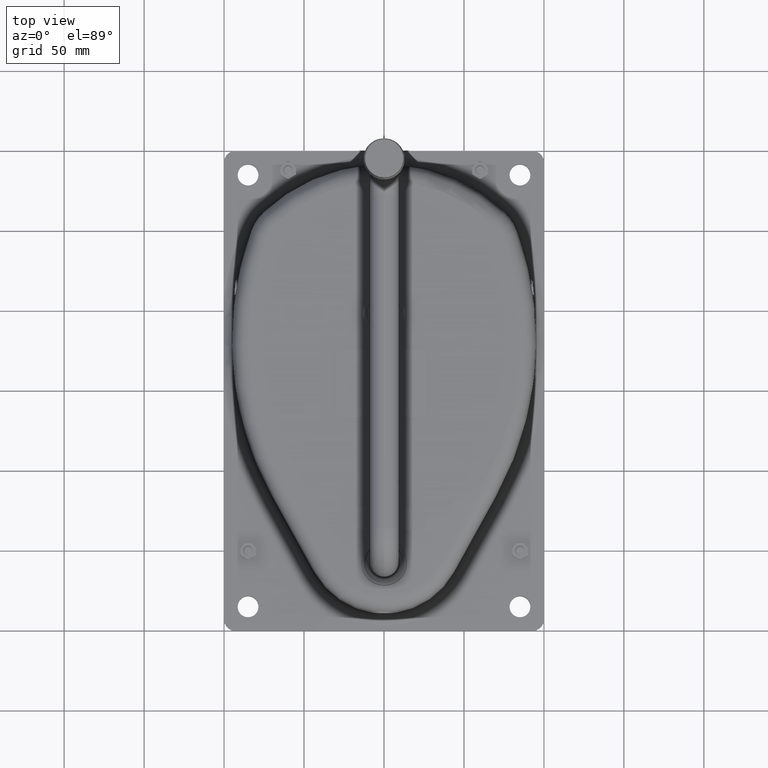
[diagram: clean part render]
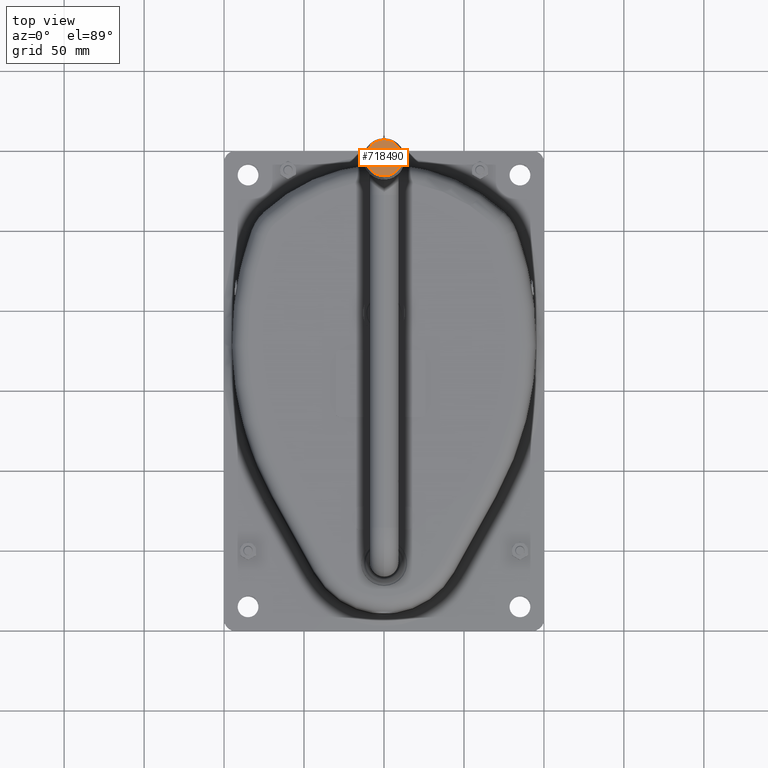
[diagram: same view with one face highlighted and labeled with its STEP entity id]
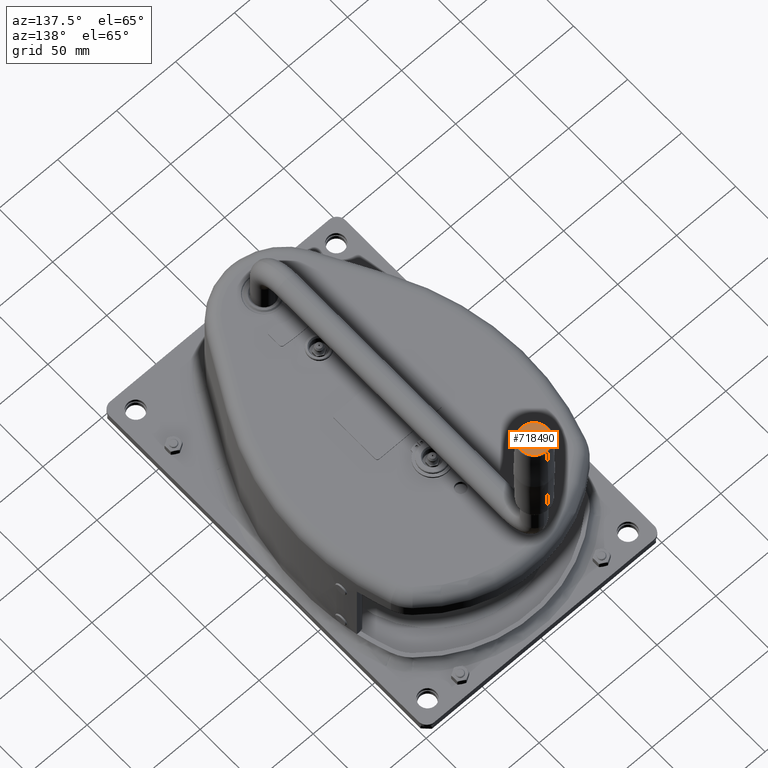
[diagram: same view with one face highlighted and labeled with its STEP entity id]
A machine part, top view. The second image highlights one B-rep face of the part: STEP entity #718490.
A second angle (auxiliary view) of the same face is appended — the face is thin or edge-on in the first view.
In plain terms, the highlighted planar face has unit normal (0, 0, -1).
Its self-contained STEP definition (entity closure, byte-faithful):
#718080=CARTESIAN_POINT('',(255.,-238.741992587493,0.));
#718090=VERTEX_POINT('',#718080);
#718180=CARTESIAN_POINT('',(255.,-261.258007412507,0.));
#718190=VERTEX_POINT('',#718180);
#718220=CARTESIAN_POINT('',(255.,-250.,0.));
#718230=DIRECTION('',(1.,0.,0.));
#718240=DIRECTION('',(0.,1.,0.));
#718250=AXIS2_PLACEMENT_3D('',#718220,#718230,#718240);
#718260=CIRCLE('',#718250,11.2580074125068);
#718270=EDGE_CURVE('',#718190,#718090,#718260,.T.);
#718390=CARTESIAN_POINT('',(255.,-239.229647662189,0.));
#718400=DIRECTION('',(-1.,0.,0.));
#718410=DIRECTION('',(0.,1.,0.));
#718420=AXIS2_PLACEMENT_3D('',#718390,#718400,#718410);
#718430=PLANE('',#718420);
#718440=EDGE_CURVE('',#718090,#718190,#718260,.T.);
#718450=ORIENTED_EDGE('',*,*,#718440,.T.);
#718460=ORIENTED_EDGE('',*,*,#718270,.T.);
#718470=EDGE_LOOP('',(#718460,#718450));
#718480=FACE_OUTER_BOUND('',#718470,.T.);
#718490=ADVANCED_FACE('',(#718480),#718430,.F.);